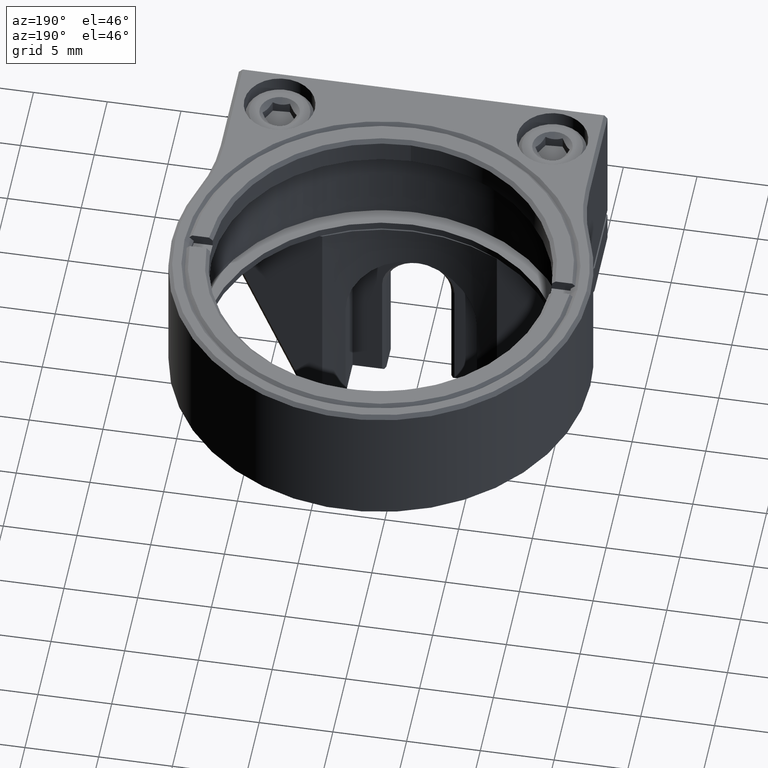
[diagram: clean part render]
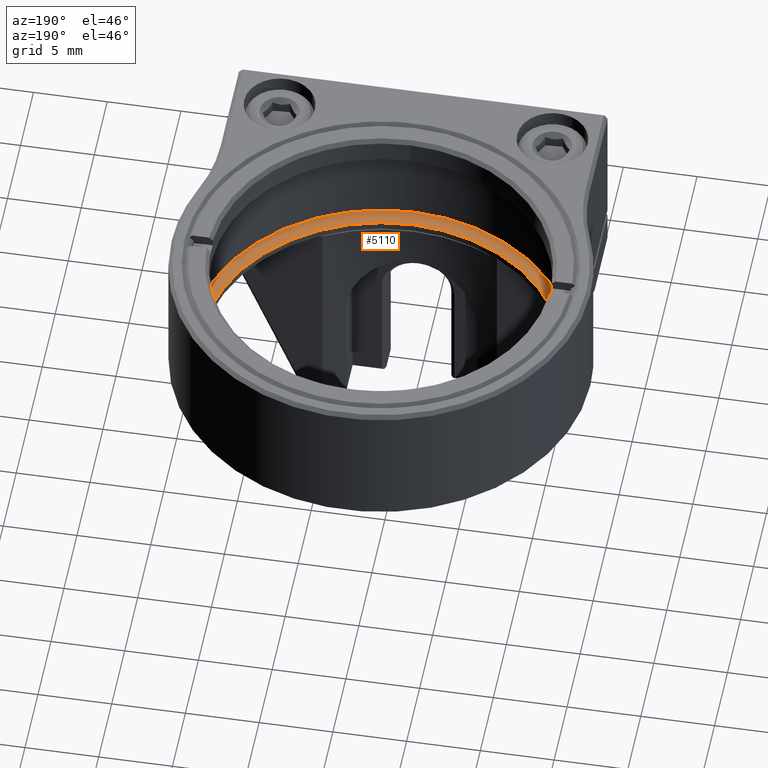
[diagram: same view with one face highlighted and labeled with its STEP entity id]
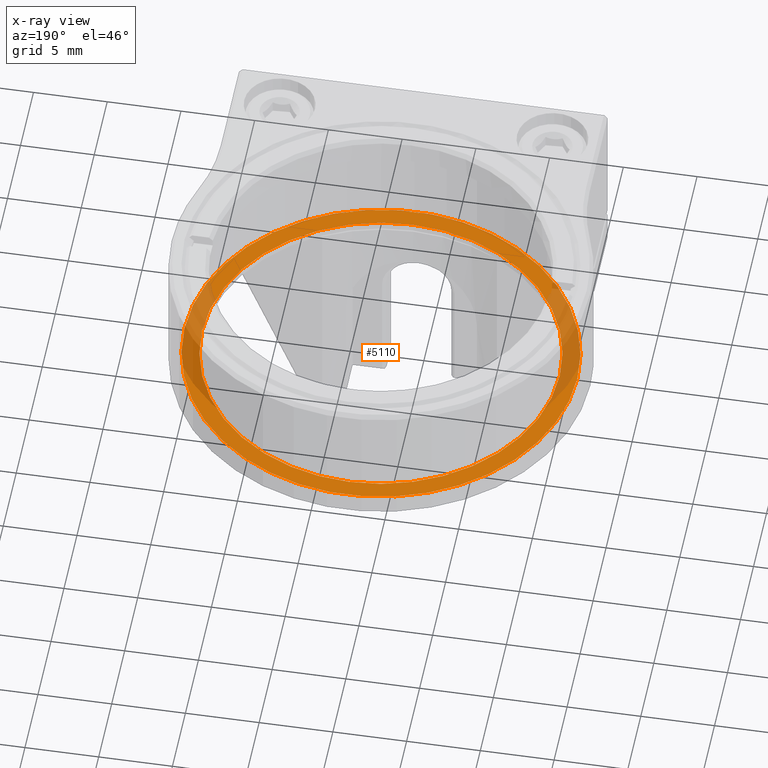
[diagram: x-ray of the same camera — body ghosted, the highlighted face saturated]
A machine part, auxiliary view. The second image highlights one B-rep face of the part: STEP entity #5110.
The next image is the same camera in x-ray: the body ghosted, the highlighted face saturated — about 23% of this face is hidden behind the body in this view.
In plain terms, the highlighted planar face has unit normal (0, 0, 1).
Its self-contained STEP definition (entity closure, byte-faithful):
#151 = CARTESIAN_POINT ( 'NONE',  ( -12.12700000000000067, 16.50000000000000000, -8.500000000000000000 ) ) ;
#310 = CIRCLE ( 'NONE', #3374, 13.32699999999999996 ) ;
#731 = AXIS2_PLACEMENT_3D ( 'NONE', #3254, #1638, #1675 ) ;
#996 = AXIS2_PLACEMENT_3D ( 'NONE', #5737, #6260, #3719 ) ;
#1000 = FACE_BOUND ( 'NONE', #4594, .T. ) ;
#1451 = CIRCLE ( 'NONE', #996, 12.12700000000000067 ) ;
#1457 = EDGE_LOOP ( 'NONE', ( #6655, #4675 ) ) ;
#1596 = DIRECTION ( 'NONE',  ( 0.000000000000000000, 0.000000000000000000, 1.000000000000000000 ) ) ;
#1638 = DIRECTION ( 'NONE',  ( 0.000000000000000000, 0.000000000000000000, 1.000000000000000000 ) ) ;
#1675 = DIRECTION ( 'NONE',  ( 1.000000000000000000, 0.000000000000000000, -0.000000000000000000 ) ) ;
#2172 = VERTEX_POINT ( 'NONE', #6093 ) ;
#2348 = EDGE_CURVE ( 'NONE', #5237, #2172, #5990, .T. ) ;
#2517 = EDGE_CURVE ( 'NONE', #5799, #4413, #6532, .T. ) ;
#2732 = PLANE ( 'NONE',  #731 ) ;
#2957 = AXIS2_PLACEMENT_3D ( 'NONE', #4330, #3775, #5813 ) ;
#3254 = CARTESIAN_POINT ( 'NONE',  ( 0.000000000000000000, 16.50000000000000000, -8.500000000000000000 ) ) ;
#3374 = AXIS2_PLACEMENT_3D ( 'NONE', #4610, #5690, #3651 ) ;
#3378 = ORIENTED_EDGE ( 'NONE', *, *, #5535, .F. ) ;
#3631 = DIRECTION ( 'NONE',  ( 1.000000000000000000, 0.000000000000000000, 0.000000000000000000 ) ) ;
#3651 = DIRECTION ( 'NONE',  ( 1.000000000000000000, 0.000000000000000000, 0.000000000000000000 ) ) ;
#3719 = DIRECTION ( 'NONE',  ( 1.000000000000000000, 0.000000000000000000, 0.000000000000000000 ) ) ;
#3732 = FACE_OUTER_BOUND ( 'NONE', #1457, .T. ) ;
#3735 = EDGE_CURVE ( 'NONE', #4413, #5799, #310, .T. ) ;
#3775 = DIRECTION ( 'NONE',  ( 0.000000000000000000, 0.000000000000000000, 1.000000000000000000 ) ) ;
#4330 = CARTESIAN_POINT ( 'NONE',  ( 0.000000000000000000, 16.50000000000000000, -8.500000000000000000 ) ) ;
#4413 = VERTEX_POINT ( 'NONE', #6153 ) ;
#4439 = ORIENTED_EDGE ( 'NONE', *, *, #2348, .F. ) ;
#4449 = CARTESIAN_POINT ( 'NONE',  ( -13.32699999999999996, 16.50000000000000000, -8.500000000000000000 ) ) ;
#4594 = EDGE_LOOP ( 'NONE', ( #3378, #4439 ) ) ;
#4610 = CARTESIAN_POINT ( 'NONE',  ( 0.000000000000000000, 16.50000000000000000, -8.500000000000000000 ) ) ;
#4675 = ORIENTED_EDGE ( 'NONE', *, *, #3735, .T. ) ;
#4809 = AXIS2_PLACEMENT_3D ( 'NONE', #6728, #1596, #3631 ) ;
#5110 = ADVANCED_FACE ( 'NONE', ( #1000, #3732 ), #2732, .T. ) ;
#5237 = VERTEX_POINT ( 'NONE', #151 ) ;
#5535 = EDGE_CURVE ( 'NONE', #2172, #5237, #1451, .T. ) ;
#5690 = DIRECTION ( 'NONE',  ( 0.000000000000000000, 0.000000000000000000, 1.000000000000000000 ) ) ;
#5737 = CARTESIAN_POINT ( 'NONE',  ( 0.000000000000000000, 16.50000000000000000, -8.500000000000000000 ) ) ;
#5799 = VERTEX_POINT ( 'NONE', #4449 ) ;
#5813 = DIRECTION ( 'NONE',  ( 1.000000000000000000, 0.000000000000000000, 0.000000000000000000 ) ) ;
#5990 = CIRCLE ( 'NONE', #4809, 12.12700000000000067 ) ;
#6093 = CARTESIAN_POINT ( 'NONE',  ( 12.12700000000000067, 16.50000000000000000, -8.500000000000000000 ) ) ;
#6153 = CARTESIAN_POINT ( 'NONE',  ( 13.32699999999999996, 16.50000000000000000, -8.500000000000000000 ) ) ;
#6260 = DIRECTION ( 'NONE',  ( 0.000000000000000000, 0.000000000000000000, 1.000000000000000000 ) ) ;
#6532 = CIRCLE ( 'NONE', #2957, 13.32699999999999996 ) ;
#6655 = ORIENTED_EDGE ( 'NONE', *, *, #2517, .T. ) ;
#6728 = CARTESIAN_POINT ( 'NONE',  ( 0.000000000000000000, 16.50000000000000000, -8.500000000000000000 ) ) ;